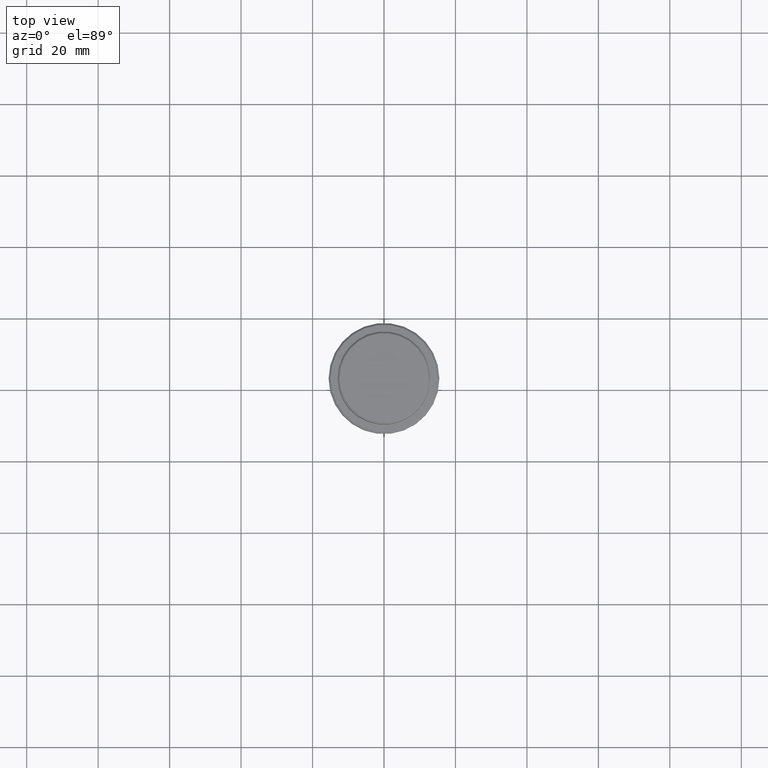
[diagram: clean part render]
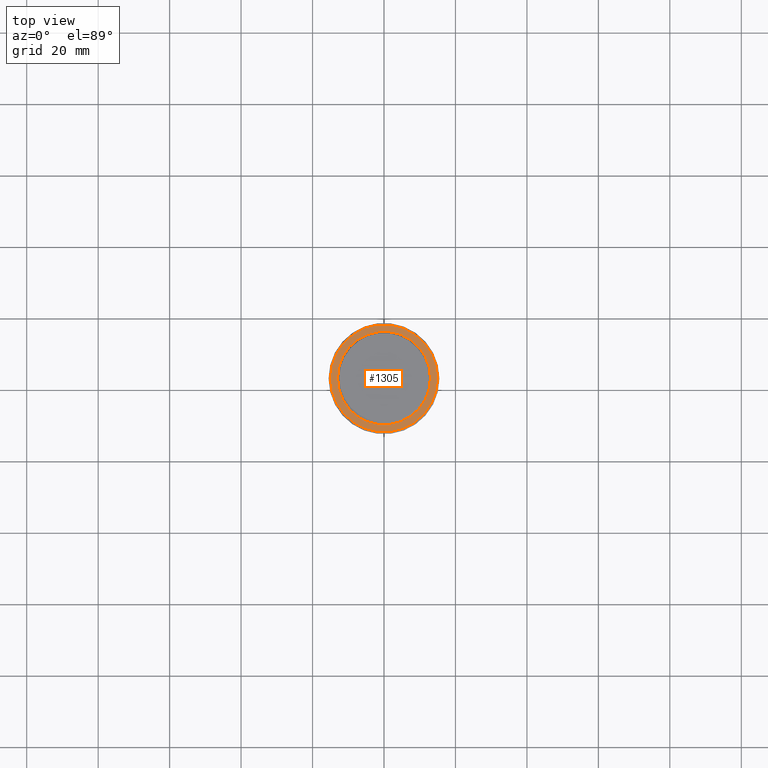
[diagram: same view with one face highlighted and labeled with its STEP entity id]
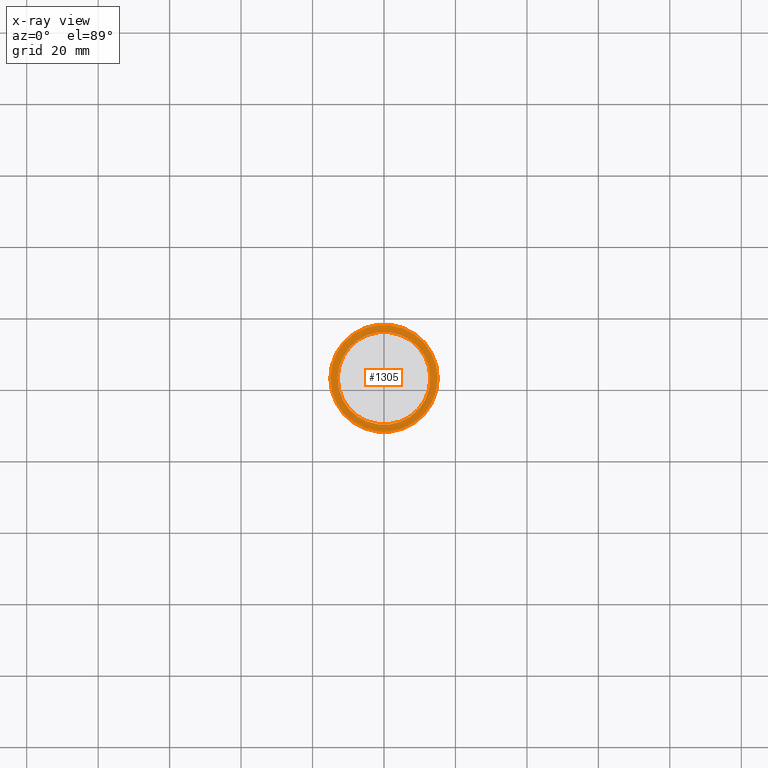
[diagram: x-ray of the same camera — body ghosted, the highlighted face saturated]
A machine part, top view. The second image highlights one B-rep face of the part: STEP entity #1305.
The next image is the same camera in x-ray: the body ghosted, the highlighted face saturated — about 0% of this face is hidden behind the body in this view.
In plain terms, the highlighted planar face has unit normal (0, -0, 1).
Its self-contained STEP definition (entity closure, byte-faithful):
#46 = DIRECTION ( 'NONE',  ( 1.000000000000000000, 0.000000000000000000, 0.000000000000000000 ) ) ;
#100 = DIRECTION ( 'NONE',  ( -0.000000000000000000, -0.000000000000000000, 1.000000000000000000 ) ) ;
#118 = AXIS2_PLACEMENT_3D ( 'NONE', #353, #705, #46 ) ;
#215 = PLANE ( 'NONE',  #776 ) ;
#254 = DIRECTION ( 'NONE',  ( 1.000000000000000000, 0.000000000000000000, 0.000000000000000000 ) ) ;
#325 = DIRECTION ( 'NONE',  ( 1.000000000000000000, 0.000000000000000000, 0.000000000000000000 ) ) ;
#350 = CARTESIAN_POINT ( 'NONE',  ( 15.00000000000001421, 1.867586368699714559E-15, -9.000000000000001776 ) ) ;
#353 = CARTESIAN_POINT ( 'NONE',  ( 0.000000000000000000, 0.000000000000000000, -9.000000000000001776 ) ) ;
#386 = EDGE_CURVE ( 'NONE', #944, #791, #1269, .T. ) ;
#438 = DIRECTION ( 'NONE',  ( -0.000000000000000000, -0.000000000000000000, 1.000000000000000000 ) ) ;
#473 = ORIENTED_EDGE ( 'NONE', *, *, #1401, .T. ) ;
#474 = EDGE_CURVE ( 'NONE', #579, #1349, #835, .T. ) ;
#497 = CIRCLE ( 'NONE', #1298, 15.00000000000001421 ) ;
#561 = ORIENTED_EDGE ( 'NONE', *, *, #386, .T. ) ;
#579 = VERTEX_POINT ( 'NONE', #350 ) ;
#618 = CARTESIAN_POINT ( 'NONE',  ( 0.000000000000000000, 0.000000000000000000, -9.000000000000001776 ) ) ;
#626 = CARTESIAN_POINT ( 'NONE',  ( 0.000000000000000000, 0.000000000000000000, -9.000000000000001776 ) ) ;
#690 = CARTESIAN_POINT ( 'NONE',  ( -15.00000000000001421, 0.000000000000000000, -9.000000000000001776 ) ) ;
#699 = DIRECTION ( 'NONE',  ( 0.000000000000000000, -0.000000000000000000, 1.000000000000000000 ) ) ;
#705 = DIRECTION ( 'NONE',  ( 0.000000000000000000, 0.000000000000000000, -1.000000000000000000 ) ) ;
#752 = FACE_OUTER_BOUND ( 'NONE', #1171, .T. ) ;
#767 = AXIS2_PLACEMENT_3D ( 'NONE', #618, #100, #1278 ) ;
#776 = AXIS2_PLACEMENT_3D ( 'NONE', #1093, #699, #254 ) ;
#791 = VERTEX_POINT ( 'NONE', #1191 ) ;
#835 = CIRCLE ( 'NONE', #767, 15.00000000000001421 ) ;
#884 = DIRECTION ( 'NONE',  ( 1.000000000000000000, 0.000000000000000000, 0.000000000000000000 ) ) ;
#889 = ORIENTED_EDGE ( 'NONE', *, *, #1220, .T. ) ;
#944 = VERTEX_POINT ( 'NONE', #1311 ) ;
#984 = EDGE_LOOP ( 'NONE', ( #473, #561 ) ) ;
#1033 = ORIENTED_EDGE ( 'NONE', *, *, #474, .T. ) ;
#1093 = CARTESIAN_POINT ( 'NONE',  ( 0.000000000000000000, 12.49999999999999289, -9.000000000000001776 ) ) ;
#1102 = CARTESIAN_POINT ( 'NONE',  ( 0.000000000000000000, 0.000000000000000000, -9.000000000000001776 ) ) ;
#1114 = AXIS2_PLACEMENT_3D ( 'NONE', #626, #1258, #325 ) ;
#1171 = EDGE_LOOP ( 'NONE', ( #889, #1033 ) ) ;
#1189 = FACE_BOUND ( 'NONE', #984, .T. ) ;
#1191 = CARTESIAN_POINT ( 'NONE',  ( 12.99999999999999467, 0.000000000000000000, -9.000000000000001776 ) ) ;
#1220 = EDGE_CURVE ( 'NONE', #1349, #579, #497, .T. ) ;
#1258 = DIRECTION ( 'NONE',  ( 0.000000000000000000, 0.000000000000000000, -1.000000000000000000 ) ) ;
#1269 = CIRCLE ( 'NONE', #1114, 12.99999999999999467 ) ;
#1278 = DIRECTION ( 'NONE',  ( 1.000000000000000000, 0.000000000000000000, 0.000000000000000000 ) ) ;
#1298 = AXIS2_PLACEMENT_3D ( 'NONE', #1102, #438, #884 ) ;
#1305 = ADVANCED_FACE ( 'NONE', ( #752, #1189 ), #215, .T. ) ;
#1311 = CARTESIAN_POINT ( 'NONE',  ( -12.99999999999999467, 1.592040838891558504E-15, -9.000000000000001776 ) ) ;
#1343 = CIRCLE ( 'NONE', #118, 12.99999999999999467 ) ;
#1349 = VERTEX_POINT ( 'NONE', #690 ) ;
#1401 = EDGE_CURVE ( 'NONE', #791, #944, #1343, .T. ) ;